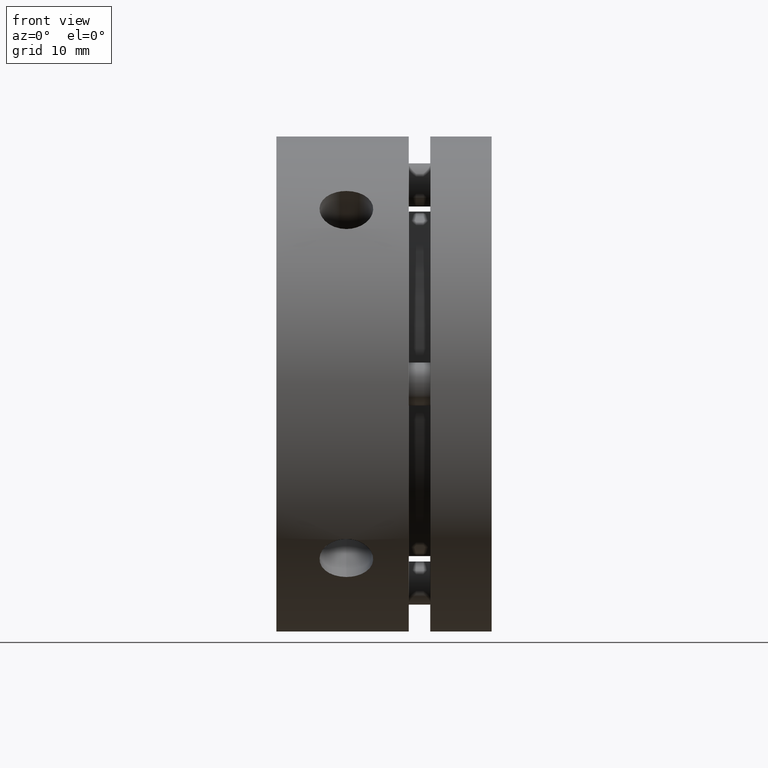
[diagram: clean part render]
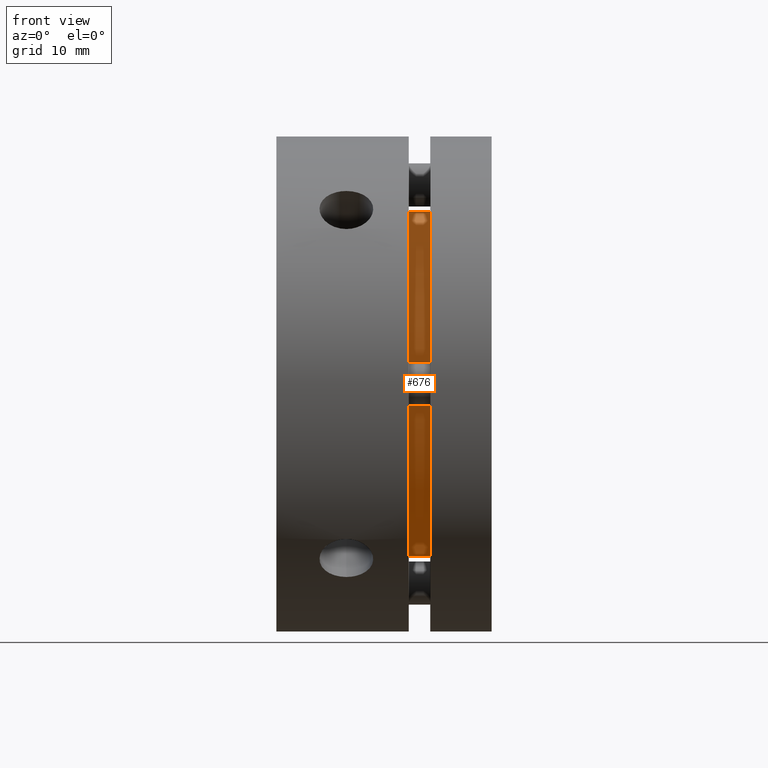
[diagram: same view with one face highlighted and labeled with its STEP entity id]
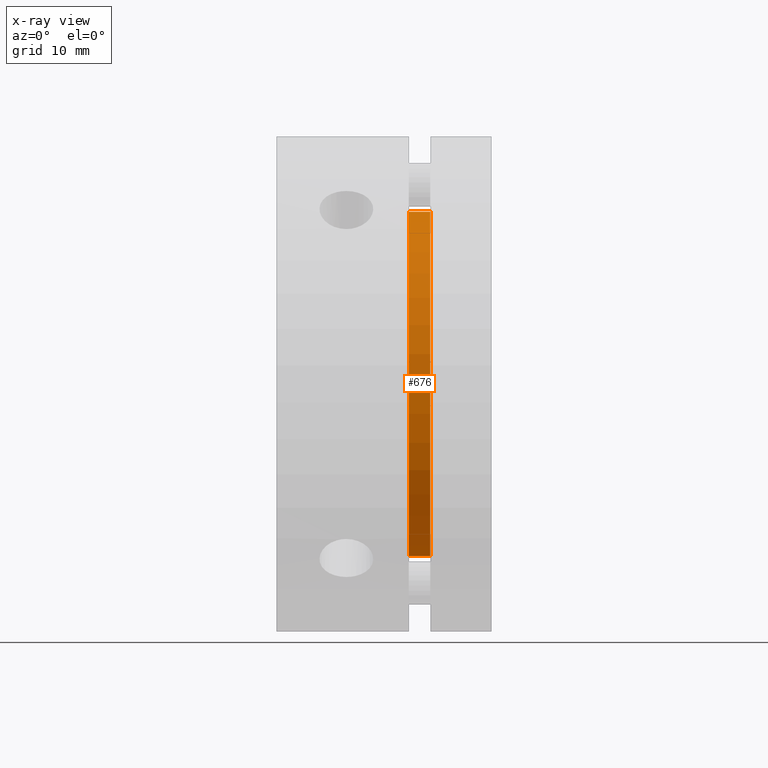
[diagram: x-ray of the same camera — body ghosted, the highlighted face saturated]
A machine part, front view. The second image highlights one B-rep face of the part: STEP entity #676.
The next image is the same camera in x-ray: the body ghosted, the highlighted face saturated — about 0% of this face is hidden behind the body in this view.
In plain terms, the highlighted cylindrical surface (partial cylindrical patch) has radius 16 mm, axis along (-1, 0, 0).
Its self-contained STEP definition (entity closure, byte-faithful):
#64 = FACE_OUTER_BOUND ( 'NONE', #1836, .T. ) ;
#73 = CYLINDRICAL_SURFACE ( 'NONE', #2724, 16.00000000000000000 ) ;
#125 = CIRCLE ( 'NONE', #2739, 16.00000000000000000 ) ;
#175 = CIRCLE ( 'NONE', #2298, 16.00000000000000000 ) ;
#350 = LINE ( 'NONE', #886, #354 ) ;
#352 = LINE ( 'NONE', #892, #358 ) ;
#354 = VECTOR ( 'NONE', #883, 1000.000000000000000 ) ;
#358 = VECTOR ( 'NONE', #893, 1000.000000000000000 ) ;
#676 = ADVANCED_FACE ( 'NONE', ( #64 ), #73, .T. ) ;
#883 = DIRECTION ( 'NONE',  ( -1.000000000000000000, 0.0000000000000000000, 0.0000000000000000000 ) ) ;
#886 = CARTESIAN_POINT ( 'NONE',  ( 13.30000000000000100, 1.959434878635765100E-015, -16.00000000000000000 ) ) ;
#892 = CARTESIAN_POINT ( 'NONE',  ( 13.30000000000000100, 0.0000000000000000000, 16.00000000000000000 ) ) ;
#893 = DIRECTION ( 'NONE',  ( -1.000000000000000000, 0.0000000000000000000, 0.0000000000000000000 ) ) ;
#945 = CARTESIAN_POINT ( 'NONE',  ( 14.29999999999999900, 0.0000000000000000000, 0.0000000000000000000 ) ) ;
#946 = DIRECTION ( 'NONE',  ( -1.000000000000000000, 0.0000000000000000000, 0.0000000000000000000 ) ) ;
#947 = DIRECTION ( 'NONE',  ( 0.0000000000000000000, 0.0000000000000000000, 1.000000000000000000 ) ) ;
#1367 = ORIENTED_EDGE ( 'NONE', *, *, #2378, .T. ) ;
#1369 = ORIENTED_EDGE ( 'NONE', *, *, #2356, .T. ) ;
#1397 = ORIENTED_EDGE ( 'NONE', *, *, #2355, .F. ) ;
#1426 = ORIENTED_EDGE ( 'NONE', *, *, #1466, .T. ) ;
#1466 = EDGE_CURVE ( 'NONE', #1599, #1564, #125, .T. ) ;
#1555 = VERTEX_POINT ( 'NONE', #3433 ) ;
#1564 = VERTEX_POINT ( 'NONE', #3440 ) ;
#1569 = VERTEX_POINT ( 'NONE', #3445 ) ;
#1599 = VERTEX_POINT ( 'NONE', #3475 ) ;
#1836 = EDGE_LOOP ( 'NONE', ( #1397, #1367, #1369, #1426 ) ) ;
#2298 = AXIS2_PLACEMENT_3D ( 'NONE', #945, #946, #947 ) ;
#2355 = EDGE_CURVE ( 'NONE', #1555, #1564, #350, .T. ) ;
#2356 = EDGE_CURVE ( 'NONE', #1569, #1599, #352, .T. ) ;
#2378 = EDGE_CURVE ( 'NONE', #1555, #1569, #175, .T. ) ;
#2724 = AXIS2_PLACEMENT_3D ( 'NONE', #3111, #3109, #3107 ) ;
#2739 = AXIS2_PLACEMENT_3D ( 'NONE', #3190, #3191, #3192 ) ;
#3107 = DIRECTION ( 'NONE',  ( 0.0000000000000000000, 0.0000000000000000000, 1.000000000000000000 ) ) ;
#3109 = DIRECTION ( 'NONE',  ( -1.000000000000000000, 0.0000000000000000000, 0.0000000000000000000 ) ) ;
#3111 = CARTESIAN_POINT ( 'NONE',  ( 13.30000000000000100, 0.0000000000000000000, 0.0000000000000000000 ) ) ;
#3190 = CARTESIAN_POINT ( 'NONE',  ( 12.30000000000000100, 0.0000000000000000000, 0.0000000000000000000 ) ) ;
#3191 = DIRECTION ( 'NONE',  ( 1.000000000000000000, -0.0000000000000000000, -0.0000000000000000000 ) ) ;
#3192 = DIRECTION ( 'NONE',  ( 0.0000000000000000000, 0.0000000000000000000, 1.000000000000000000 ) ) ;
#3433 = CARTESIAN_POINT ( 'NONE',  ( 14.29999999999999900, 1.959434878635765100E-015, -16.00000000000000000 ) ) ;
#3440 = CARTESIAN_POINT ( 'NONE',  ( 12.30000000000000100, 1.959434878635765100E-015, -16.00000000000000000 ) ) ;
#3445 = CARTESIAN_POINT ( 'NONE',  ( 14.29999999999999900, 0.0000000000000000000, 16.00000000000000000 ) ) ;
#3475 = CARTESIAN_POINT ( 'NONE',  ( 12.30000000000000100, 0.0000000000000000000, 16.00000000000000000 ) ) ;